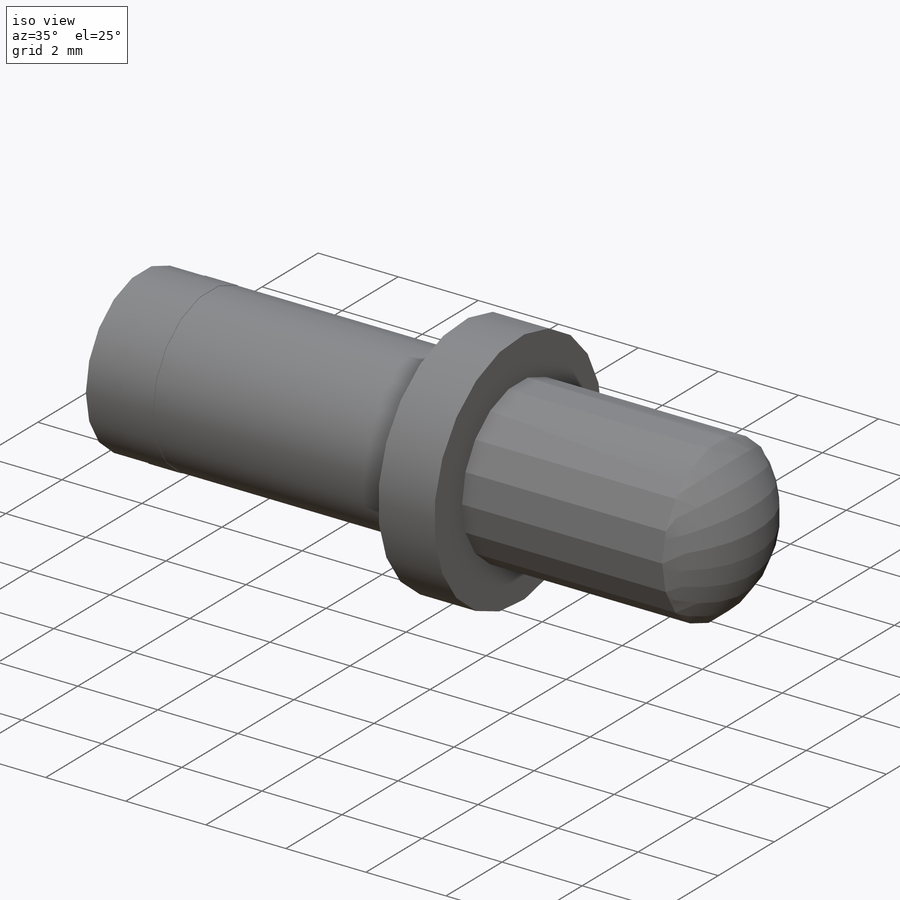
[diagram: iso view]
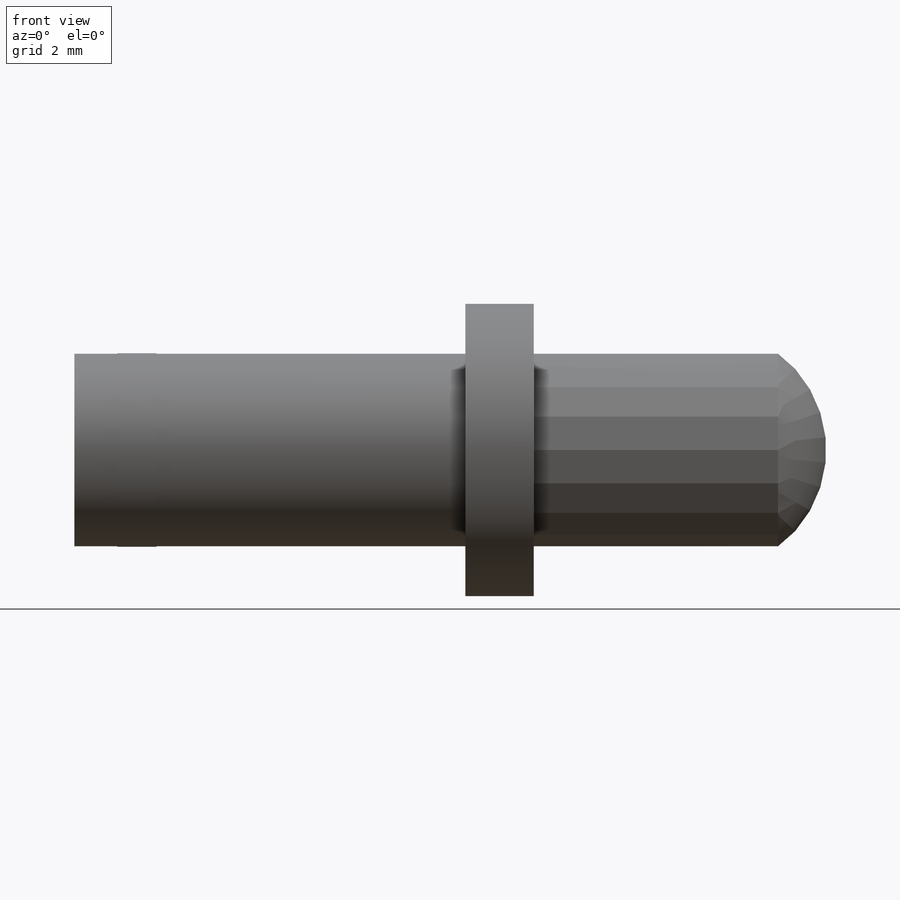
[diagram: front view]
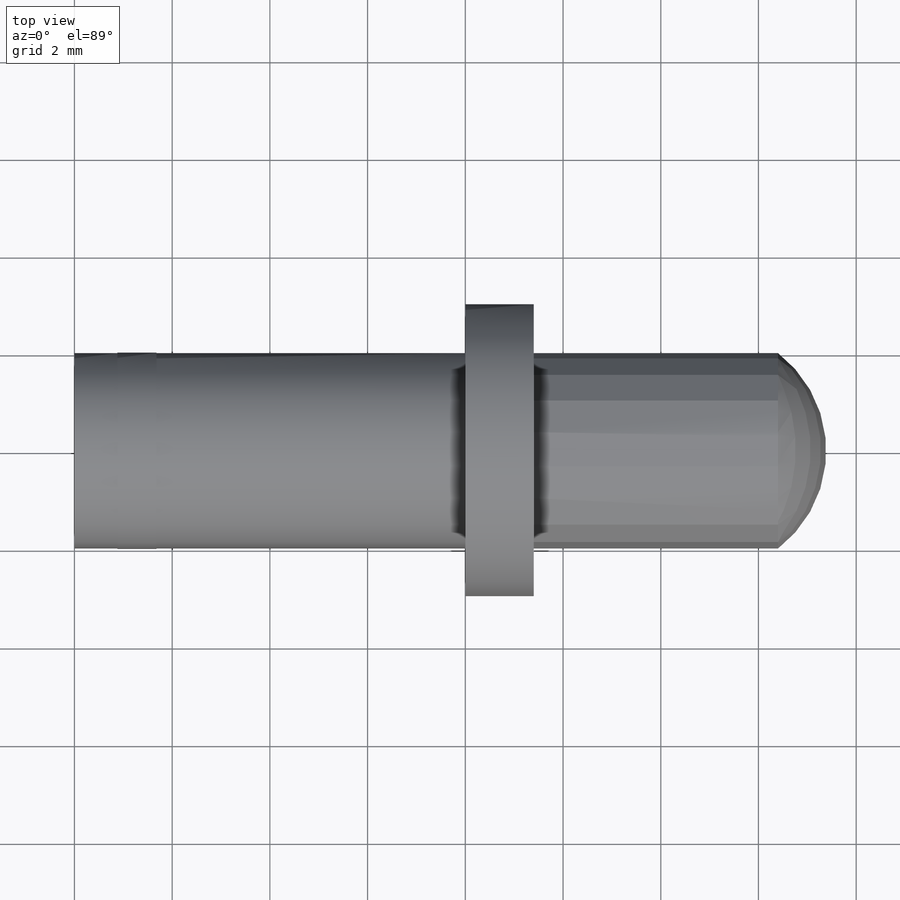
[diagram: top view]
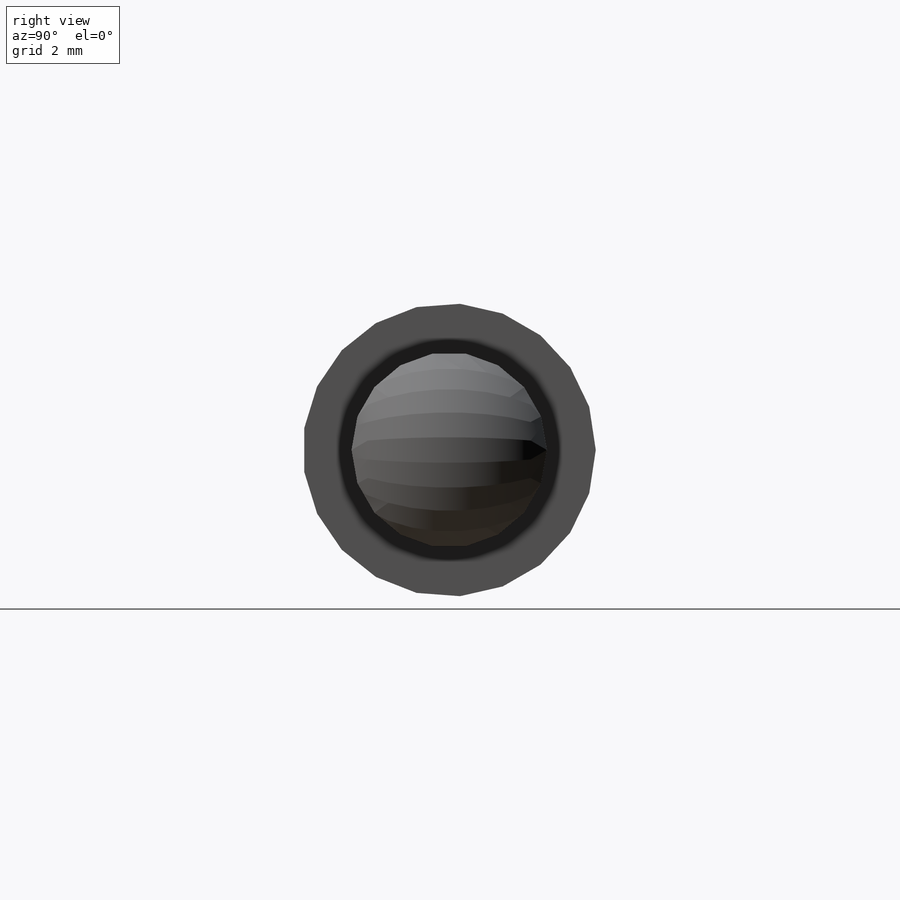
[diagram: right view]
SOLIDWORKS PART (.sldprt)
format: sldprt  version: not decoded by parser v0  size: 298,496 bytes
history: native  units: mm
features: plane x6, sketch x3, dome x2, extrude x2, material x1, revolve x1 (+12 scaffold rows collapsed)
feature tree (27):
  scaffold x12  (default folders/planes/origin — collapsed)
  material  "AISI Acier inoxydable type 316L"
  plane  "Face"
  plane  "Dessus"
  plane  "Droite"
  sketch  "Esquisse1"  dims[D1=2.0mm D2=2.0mm D3=3.0mm D4=8.0mm D5=1.4mm D6=5.0mm]
  revolve  "Révolution1"  Angle=360deg
  dome  "Dôme1"
  plane  "Plan1"  Offset=2mm
  plane  "Plan2"  Offset=4mm
  sketch  "Esquisse3"  dims[D1=0.2mm D2=2.0mm D3=4.0mm]
  extrude  "Extrusion2"  [1 undecoded]
  plane  "Plan3"  Offset=1.68mm
  sketch  "Esquisse4"  dims[D1=0.01mm]
  dome  "Extrusion3"  faceID=1
  extrude  "FaceIDTag-7"  Depth=7 faceID=7
decode coverage: 6 of 8 modeling features carry decoded parameters
note: 1 parameter value undecoded
note: suppression state not decoded; provenance and decode notes live in map.json
